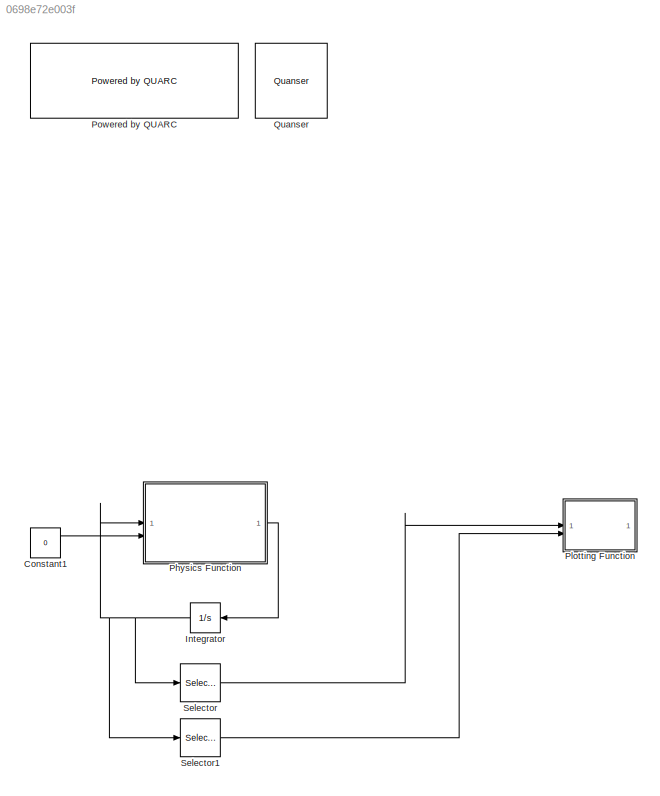
MODEL slx_0698e72e003f
KIND model
CONFIG AbsTol = auto
CONFIG EnableMultiTasking = on
CONFIG FixedStep = 0.002
CONFIG MaxStep = auto
CONFIG MinStep = auto
CONFIG RelTol = 1e-3
CONFIG SampleTimeConstraint = Unconstrained
CONFIG SolverName = ode3
CONFIG StartTime = 0.0
CONFIG StopTime = 20
BLOCK [Constant] Constant1
  Value = 0
BLOCK [Integrator] Integrator
  InitialCondition = [0; 0; 0; 0]
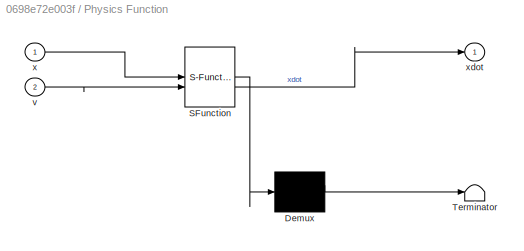
BLOCK [SubSystem] Physics Function
  ErrorFcn = Stateflow.Translate.translate
  PermitHierarchicalResolution = ExplicitOnly
  SFBlockType = MATLAB Function
  TreatAsAtomicUnit = on
BLOCK [Demux] Physics Function/ Demux 
  Outputs = 1
BLOCK [S-Function] Physics Function/ SFunction 
  EnableBusSupport = on
  FunctionName = sf_sfun
  PortCounts = [2 2]
  SFcnIsStateOwnerBlock = off
  SFunctionDeploymentMode = off
  Tag = Stateflow S-Function 1
BLOCK [Terminator] Physics Function/ Terminator 
BLOCK [Inport] Physics Function/v
  Port = 2
BLOCK [Inport] Physics Function/x
BLOCK [Outport] Physics Function/xdot
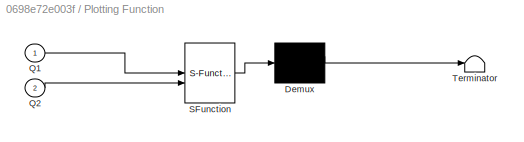
BLOCK [SubSystem] Plotting Function
  ErrorFcn = Stateflow.Translate.translate
  PermitHierarchicalResolution = ExplicitOnly
  SFBlockType = MATLAB Function
  TreatAsAtomicUnit = on
BLOCK [Demux] Plotting Function/ Demux 
  Outputs = 1
BLOCK [S-Function] Plotting Function/ SFunction 
  EnableBusSupport = on
  FunctionName = sf_sfun
  PortCounts = [2 1]
  SFcnIsStateOwnerBlock = off
  SFunctionDeploymentMode = off
  Tag = Stateflow S-Function 2
BLOCK [Terminator] Plotting Function/ Terminator 
BLOCK [Inport] Plotting Function/Q1
BLOCK [Inport] Plotting Function/Q2
  Port = 2
BLOCK [Reference] Powered by QUARC  REF=quarc_library/Logos/Powered by QUARC
  SourceBlock = quarc_library/Logos/Powered by QUARC
  SourceProductName = QUARC Targets
  SourceType = Powered by QUARC
BLOCK [Reference] Quanser  REF=quarc_library/Logos/Quanser
  SourceBlock = quarc_library/Logos/Quanser
  SourceProductName = QUARC Targets
  SourceType = Powered by Quanser
BLOCK [Selector] Selector
  IndexOptions = Index vector (dialog)
  Indices = [1]
  InputPortWidth = 4
  OutputSizes = 1
BLOCK [Selector] Selector1
  IndexOptions = Index vector (dialog)
  Indices = [3]
  InputPortWidth = 4
  OutputSizes = 1
LINE Constant1:1 -> Physics Function:2
NET Integrator:1 -> Physics Function:1, Selector1:1, Selector:1
LINE Physics Function:1 -> Integrator:1
LINE Selector1:1 -> Plotting Function:2
LINE Selector:1 -> Plotting Function:1
note: NET lines group one-source signal fan-out (src -> all destinations, sorted); 1:1 wires keep LINE
CHART Physics Function states=1 transitions=1
  STATE_LABEL 'eML_blk_kernel()'
  STATE_LABEL 'SCRIPT:\nfunction xdot = energies(x, v)\n\n    % Theta values\n    theta1 = 0.0304;\n    theta2 = 0.0184;\n    theta3 = 0.0184;\n    theta4 = 0.0921;\n    theta5 = 0.6101;\n    theta6 = 0.0097;\n\n    % Energy matrices\n    q1 = x(1);\n    q1dot = x(2);\n    q2 = x(3);\n    q2dot = x(4);\n\n    m11 = theta1+sin(q2)^2*theta2;\n    m12 = theta3*cos(q2);\n    m21 = theta3*cos(q2);\n    m22 = theta2;\n    m = [m11 m12; m2...<+421ch>'
CHART Plotting Function states=1 transitions=1
  STATE_LABEL 'eML_blk_kernel()'
  STATE_LABEL "SCRIPT:\nfunction fcn(Q1, Q2)\n    hold on\n    grid on\n    axis([-20 20 -20 20 -5 15]);\n    view(3)\n    BaseDesX = [0, 0];\n    BaseDesY = [0, 0];\n    BaseDesZ = [-5, 0];\n    plot3(BaseDesX,BaseDesY,BaseDesZ,'rs-', 'LineWidth', 2, 'MarkerSize', 8);\n\n    theta1 = Q1;\n    transformLink1(theta1);\n    theta2 = Q2;\n    transformLink2(theta1, theta2);  \n\nend\n"
CHART  states=0 transitions=0
CHART  states=0 transitions=0
